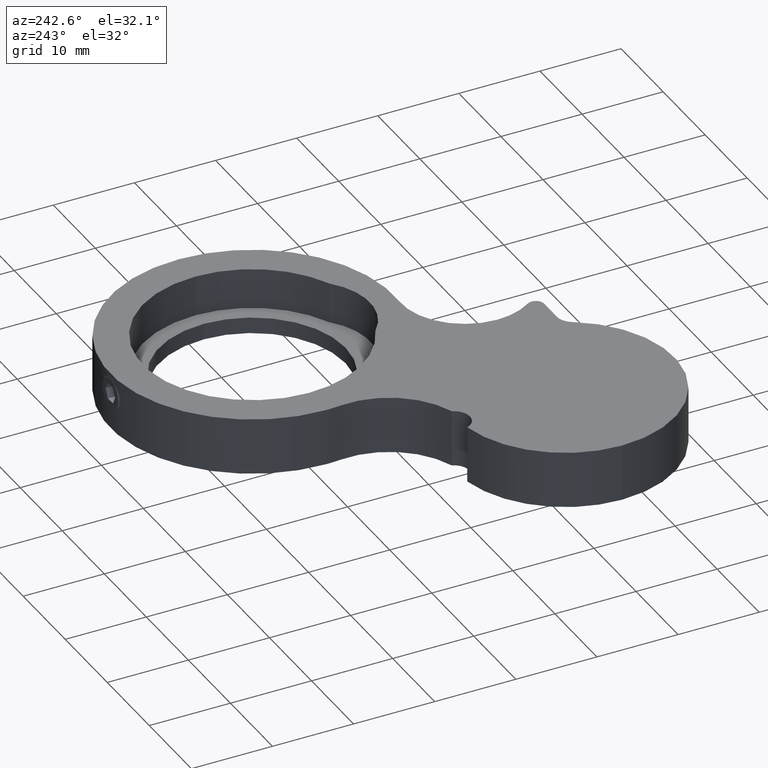
[diagram: clean part render]
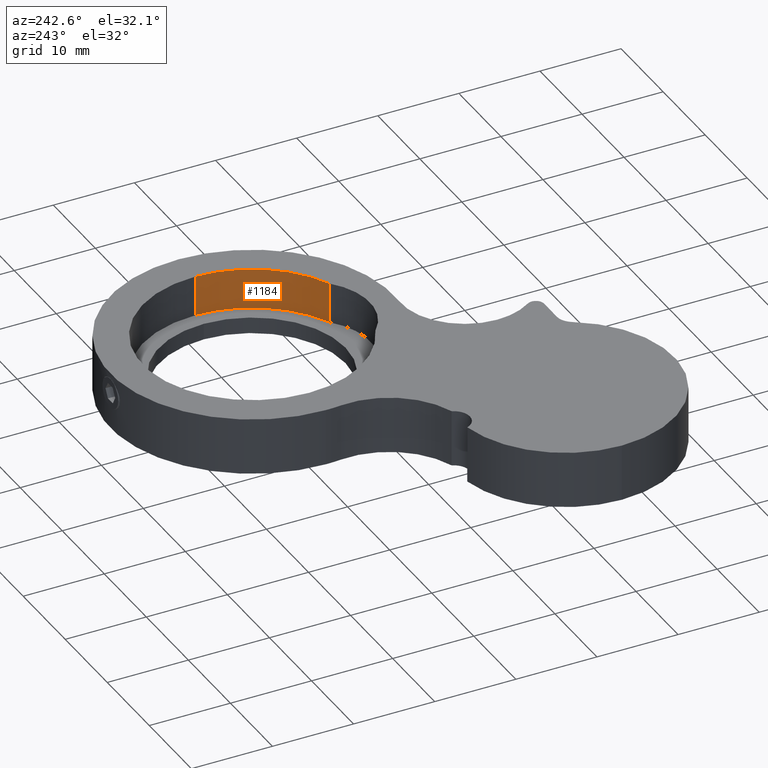
[diagram: same view with one face highlighted and labeled with its STEP entity id]
A machine part, auxiliary view. The second image highlights one B-rep face of the part: STEP entity #1184.
In plain terms, the highlighted cylindrical surface (partial cylindrical patch) has radius 13.5 mm, axis along (-0, -0, 1).
Its self-contained STEP definition (entity closure, byte-faithful):
#22 = AXIS2_PLACEMENT_3D ( 'NONE', #930, #806, #462 ) ;
#43 = LINE ( 'NONE', #276, #1264 ) ;
#150 = VECTOR ( 'NONE', #322, 1000.000000000000000 ) ;
#200 = DIRECTION ( 'NONE',  ( 1.000000000000000000, 0.0000000000000000000, 0.0000000000000000000 ) ) ;
#207 = CARTESIAN_POINT ( 'NONE',  ( 28.16858832348862100, 18.96969456225321700, 54.50000000000000700 ) ) ;
#212 = VERTEX_POINT ( 'NONE', #1329 ) ;
#233 = ORIENTED_EDGE ( 'NONE', *, *, #733, .F. ) ;
#254 = AXIS2_PLACEMENT_3D ( 'NONE', #911, #1026, #200 ) ;
#276 = CARTESIAN_POINT ( 'NONE',  ( 20.12958504634979900, 6.623540716099371100, 54.50000000000000700 ) ) ;
#322 = DIRECTION ( 'NONE',  ( -0.0000000000000000000, -0.0000000000000000000, 1.000000000000000000 ) ) ;
#352 = DIRECTION ( 'NONE',  ( 0.0000000000000000000, 0.0000000000000000000, 1.000000000000000000 ) ) ;
#454 = EDGE_CURVE ( 'NONE', #663, #1016, #637, .T. ) ;
#462 = DIRECTION ( 'NONE',  ( 1.000000000000000000, 0.0000000000000000000, 0.0000000000000000000 ) ) ;
#493 = EDGE_LOOP ( 'NONE', ( #800, #233, #1097, #837 ) ) ;
#542 = CARTESIAN_POINT ( 'NONE',  ( 28.16858832348862400, 18.96969456225321700, 54.50000000000000700 ) ) ;
#576 = CARTESIAN_POINT ( 'NONE',  ( 28.16858832348862400, 18.96969456225321700, 59.50000000000000700 ) ) ;
#624 = CYLINDRICAL_SURFACE ( 'NONE', #254, 13.49999999999999800 ) ;
#637 = LINE ( 'NONE', #207, #150 ) ;
#663 = VERTEX_POINT ( 'NONE', #542 ) ;
#709 = DIRECTION ( 'NONE',  ( 1.000000000000000000, 0.0000000000000000000, 0.0000000000000000000 ) ) ;
#733 = EDGE_CURVE ( 'NONE', #212, #663, #987, .T. ) ;
#800 = ORIENTED_EDGE ( 'NONE', *, *, #454, .F. ) ;
#806 = DIRECTION ( 'NONE',  ( 0.0000000000000000000, 0.0000000000000000000, 1.000000000000000000 ) ) ;
#837 = ORIENTED_EDGE ( 'NONE', *, *, #1031, .T. ) ;
#911 = CARTESIAN_POINT ( 'NONE',  ( 14.66858832348862100, 18.96969456225321700, 54.50000000000000700 ) ) ;
#930 = CARTESIAN_POINT ( 'NONE',  ( 14.66858832348862100, 18.96969456225321700, 54.50000000000000700 ) ) ;
#987 = CIRCLE ( 'NONE', #22, 13.49999999999999800 ) ;
#1016 = VERTEX_POINT ( 'NONE', #576 ) ;
#1026 = DIRECTION ( 'NONE',  ( -0.0000000000000000000, -0.0000000000000000000, 1.000000000000000000 ) ) ;
#1031 = EDGE_CURVE ( 'NONE', #1164, #1016, #1422, .T. ) ;
#1064 = CARTESIAN_POINT ( 'NONE',  ( 14.66858832348862100, 18.96969456225321700, 59.50000000000000700 ) ) ;
#1097 = ORIENTED_EDGE ( 'NONE', *, *, #1130, .T. ) ;
#1130 = EDGE_CURVE ( 'NONE', #212, #1164, #43, .T. ) ;
#1164 = VERTEX_POINT ( 'NONE', #1450 ) ;
#1184 = ADVANCED_FACE ( 'NONE', ( #1302 ), #624, .F. ) ;
#1264 = VECTOR ( 'NONE', #1456, 1000.000000000000000 ) ;
#1273 = AXIS2_PLACEMENT_3D ( 'NONE', #1064, #352, #709 ) ;
#1302 = FACE_OUTER_BOUND ( 'NONE', #493, .T. ) ;
#1329 = CARTESIAN_POINT ( 'NONE',  ( 20.12958504634979900, 6.623540716099371100, 54.50000000000000700 ) ) ;
#1422 = CIRCLE ( 'NONE', #1273, 13.49999999999999800 ) ;
#1450 = CARTESIAN_POINT ( 'NONE',  ( 20.12958504634979900, 6.623540716099371100, 59.50000000000000700 ) ) ;
#1456 = DIRECTION ( 'NONE',  ( -0.0000000000000000000, -0.0000000000000000000, 1.000000000000000000 ) ) ;